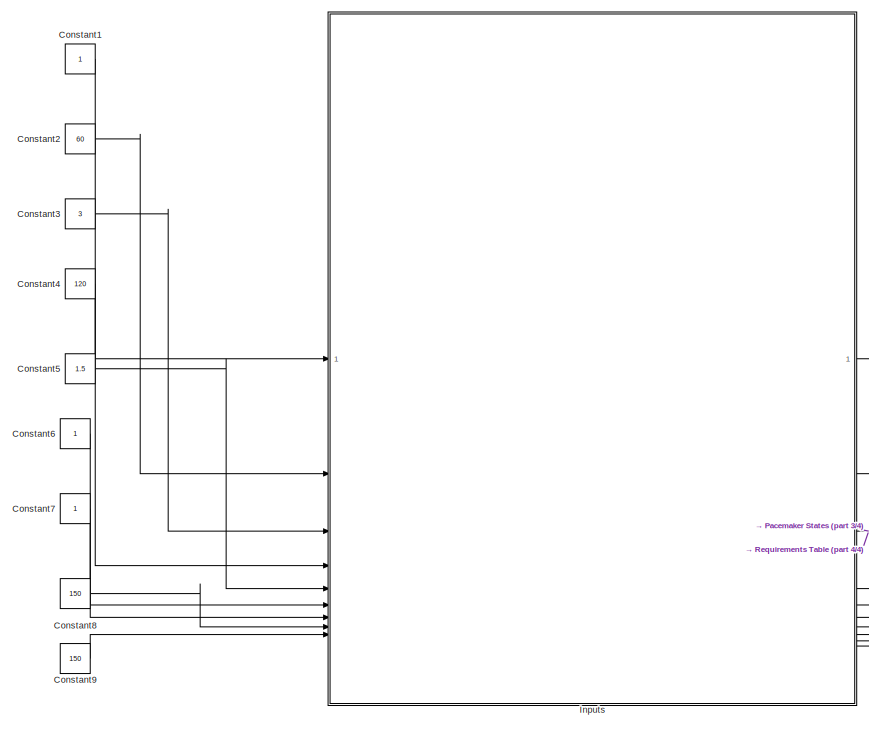
[diagram: root canvas - part 1/4, top left region]
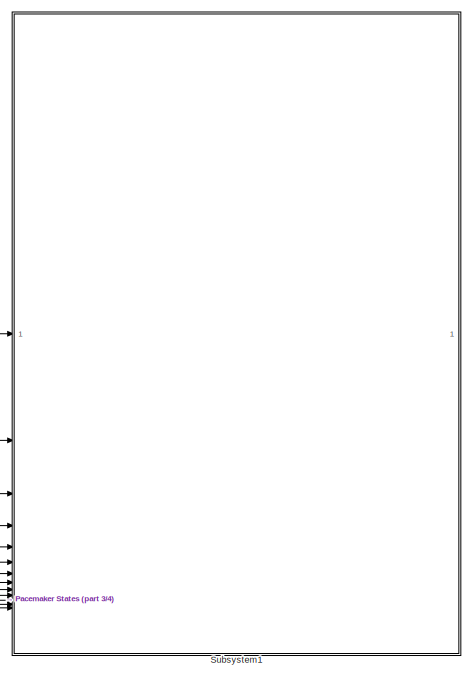
[diagram: root canvas - part 2/4, top right region]
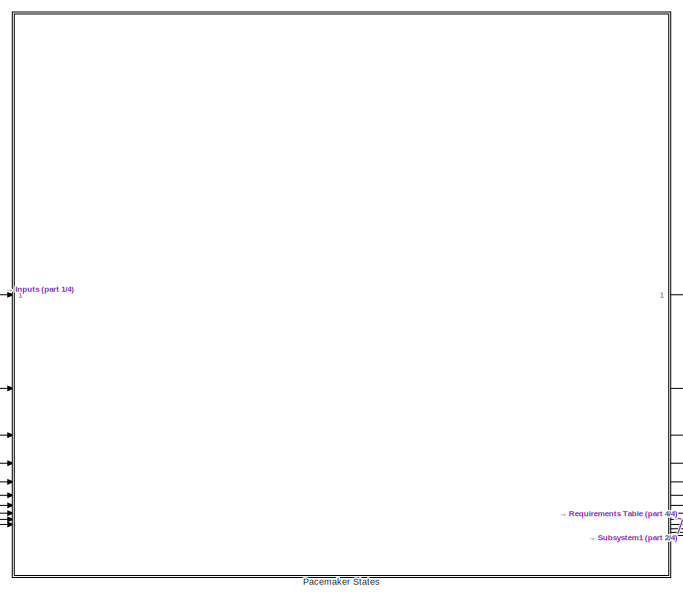
[diagram: root canvas - part 3/4, top center region]
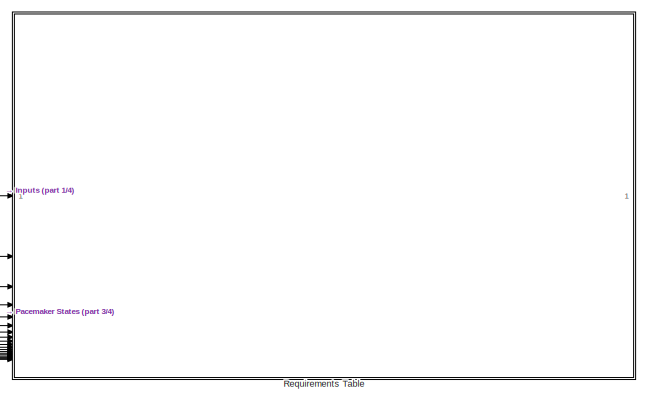
[diagram: root canvas - part 4/4, bottom right region]
MODEL slx_223e455a5ec5
KIND model
CONFIG AbsTol = auto
CONFIG EnableMultiTasking = on
CONFIG FixedStep = 1e-3
CONFIG MaxStep = auto
CONFIG MinStep = auto
CONFIG RelTol = 1e-3
CONFIG SampleTimeConstraint = Unconstrained
CONFIG SolverName = FixedStepAuto
CONFIG StartTime = 0.0
CONFIG StopTime = 10.0
BLOCK [Constant] Constant1
  OutDataTypeStr = int16
BLOCK [Constant] Constant2
  OutDataTypeStr = int16
  Value = 60
BLOCK [Constant] Constant3
  OutDataTypeStr = int8
  Value = 3
BLOCK [Constant] Constant4
  OutDataTypeStr = int16
  Value = 120
BLOCK [Constant] Constant5
  OutDataTypeStr = double
  Value = 1.5
BLOCK [Constant] Constant6
  OutDataTypeStr = double
BLOCK [Constant] Constant7
  OutDataTypeStr = int16
BLOCK [Constant] Constant8
  OutDataTypeStr = int16
  Value = 150
BLOCK [Constant] Constant9
  OutDataTypeStr = int16
  Value = 150
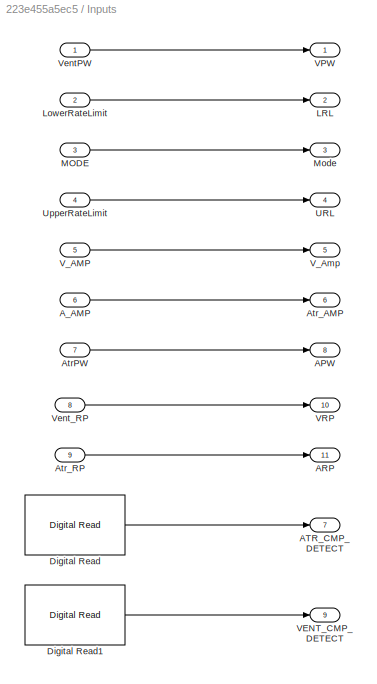
BLOCK [SubSystem] Inputs
BLOCK [Outport] Inputs/APW
  OutDataTypeStr = int16
  Port = 8
BLOCK [Outport] Inputs/ARP
  OutDataTypeStr = int16
  Port = 11
BLOCK [Outport] Inputs/ATR_CMP_DETECT
  OutDataTypeStr = boolean
  Port = 7
BLOCK [Inport] Inputs/A_AMP
  OutDataTypeStr = double
  Port = 6
BLOCK [Inport] Inputs/AtrPW
  OutDataTypeStr = int16
  Port = 7
BLOCK [Outport] Inputs/Atr_AMP
  OutDataTypeStr = double
  Port = 6
BLOCK [Inport] Inputs/Atr_RP
  OutDataTypeStr = int16
  Port = 9
BLOCK [Reference] Inputs/Digital Read  REF=frdmk64flib/Digital Read
  SourceBlock = frdmk64flib/Digital Read
  SourceType = freedomk64f.DigitalRead
BLOCK [Reference] Inputs/Digital Read1  REF=frdmk64flib/Digital Read
  SourceBlock = frdmk64flib/Digital Read
  SourceType = freedomk64f.DigitalRead
BLOCK [Outport] Inputs/LRL
  OutDataTypeStr = int16
  Port = 2
BLOCK [Inport] Inputs/LowerRateLimit
  OutDataTypeStr = int16
  Port = 2
BLOCK [Inport] Inputs/MODE
  OutDataTypeStr = int8
  Port = 3
BLOCK [Outport] Inputs/Mode
  OutDataTypeStr = int8
  Port = 3
BLOCK [Outport] Inputs/URL
  OutDataTypeStr = int16
  Port = 4
BLOCK [Inport] Inputs/UpperRateLimit
  OutDataTypeStr = int16
  Port = 4
BLOCK [Outport] Inputs/VENT_CMP_DETECT
  OutDataTypeStr = boolean
  Port = 9
BLOCK [Outport] Inputs/VPW
  OutDataTypeStr = int16
BLOCK [Outport] Inputs/VRP
  OutDataTypeStr = int16
  Port = 10
BLOCK [Inport] Inputs/V_AMP
  OutDataTypeStr = double
  Port = 5
BLOCK [Outport] Inputs/V_Amp
  OutDataTypeStr = double
  Port = 5
BLOCK [Inport] Inputs/VentPW
  OutDataTypeStr = int16
BLOCK [Inport] Inputs/Vent_RP
  OutDataTypeStr = int16
  Port = 8
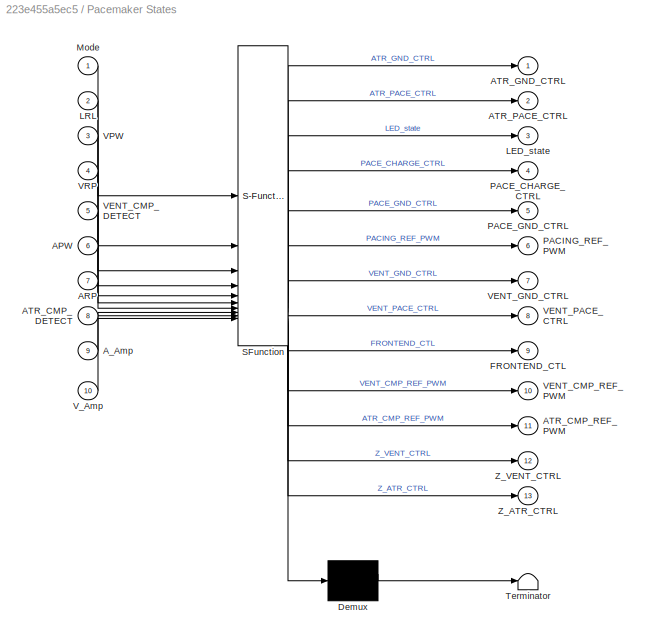
BLOCK [SubSystem] Pacemaker States
  ErrorFcn = Stateflow.Translate.translate
  PermitHierarchicalResolution = ExplicitOnly
  SFBlockType = Chart
  TreatAsAtomicUnit = on
BLOCK [Demux] Pacemaker States/ Demux 
  Outputs = 1
BLOCK [S-Function] Pacemaker States/ SFunction 
  EnableBusSupport = on
  FunctionName = sf_sfun
  PortCounts = [10 14]
  SFcnIsStateOwnerBlock = off
  SFunctionDeploymentMode = off
  Tag = Stateflow S-Function 6
BLOCK [Terminator] Pacemaker States/ Terminator 
BLOCK [Inport] Pacemaker States/APW
  Port = 6
BLOCK [Inport] Pacemaker States/ARP
  Port = 7
BLOCK [Inport] Pacemaker States/ATR_CMP_DETECT
  Port = 8
BLOCK [Outport] Pacemaker States/ATR_CMP_REF_PWM
  Port = 11
BLOCK [Outport] Pacemaker States/ATR_GND_CTRL
BLOCK [Outport] Pacemaker States/ATR_PACE_CTRL
  Port = 2
BLOCK [Inport] Pacemaker States/A_Amp
  Port = 9
BLOCK [Outport] Pacemaker States/FRONTEND_CTL
  Port = 9
BLOCK [Outport] Pacemaker States/LED_state
  Port = 3
BLOCK [Inport] Pacemaker States/LRL
  Port = 2
BLOCK [Inport] Pacemaker States/Mode
BLOCK [Outport] Pacemaker States/PACE_CHARGE_CTRL
  Port = 4
BLOCK [Outport] Pacemaker States/PACE_GND_CTRL
  Port = 5
BLOCK [Outport] Pacemaker States/PACING_REF_PWM
  Port = 6
BLOCK [Inport] Pacemaker States/VENT_CMP_DETECT
  Port = 5
BLOCK [Outport] Pacemaker States/VENT_CMP_REF_PWM
  Port = 10
BLOCK [Outport] Pacemaker States/VENT_GND_CTRL
  Port = 7
BLOCK [Outport] Pacemaker States/VENT_PACE_CTRL
  Port = 8
BLOCK [Inport] Pacemaker States/VPW
  Port = 3
BLOCK [Inport] Pacemaker States/VRP
  Port = 4
BLOCK [Inport] Pacemaker States/V_Amp
  Port = 10
BLOCK [Outport] Pacemaker States/Z_ATR_CTRL
  Port = 13
BLOCK [Outport] Pacemaker States/Z_VENT_CTRL
  Port = 12
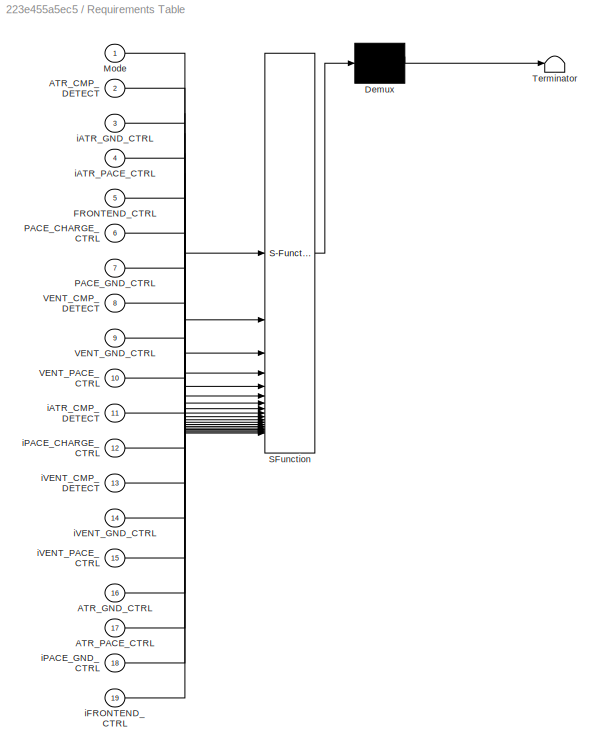
BLOCK [SubSystem] Requirements Table
  ErrorFcn = Stateflow.Translate.translate
  PermitHierarchicalResolution = ExplicitOnly
  SFBlockType = Requirements Table
  TreatAsAtomicUnit = on
BLOCK [Demux] Requirements Table/ Demux 
  Outputs = 1
BLOCK [S-Function] Requirements Table/ SFunction 
  EnableBusSupport = on
  FunctionName = sf_sfun
  PortCounts = [19 1]
  SFcnIsStateOwnerBlock = off
  SFunctionDeploymentMode = off
  Tag = Stateflow S-Function 3
BLOCK [Terminator] Requirements Table/ Terminator 
BLOCK [Inport] Requirements Table/ATR_CMP_DETECT
  Port = 2
BLOCK [Inport] Requirements Table/ATR_GND_CTRL
  Port = 16
BLOCK [Inport] Requirements Table/ATR_PACE_CTRL
  Port = 17
BLOCK [Inport] Requirements Table/FRONTEND_CTRL
  Port = 5
BLOCK [Inport] Requirements Table/Mode
BLOCK [Inport] Requirements Table/PACE_CHARGE_CTRL
  Port = 6
BLOCK [Inport] Requirements Table/PACE_GND_CTRL
  Port = 7
BLOCK [Inport] Requirements Table/VENT_CMP_DETECT
  Port = 8
BLOCK [Inport] Requirements Table/VENT_GND_CTRL
  Port = 9
BLOCK [Inport] Requirements Table/VENT_PACE_CTRL
  Port = 10
BLOCK [Inport] Requirements Table/iATR_CMP_DETECT
  Port = 11
BLOCK [Inport] Requirements Table/iATR_GND_CTRL
  Port = 3
BLOCK [Inport] Requirements Table/iATR_PACE_CTRL
  Port = 4
BLOCK [Inport] Requirements Table/iFRONTEND_CTRL
  Port = 19
BLOCK [Inport] Requirements Table/iPACE_CHARGE_CTRL
  Port = 12
BLOCK [Inport] Requirements Table/iPACE_GND_CTRL
  Port = 18
BLOCK [Inport] Requirements Table/iVENT_CMP_DETECT
  Port = 13
BLOCK [Inport] Requirements Table/iVENT_GND_CTRL
  Port = 14
BLOCK [Inport] Requirements Table/iVENT_PACE_CTRL
  Port = 15
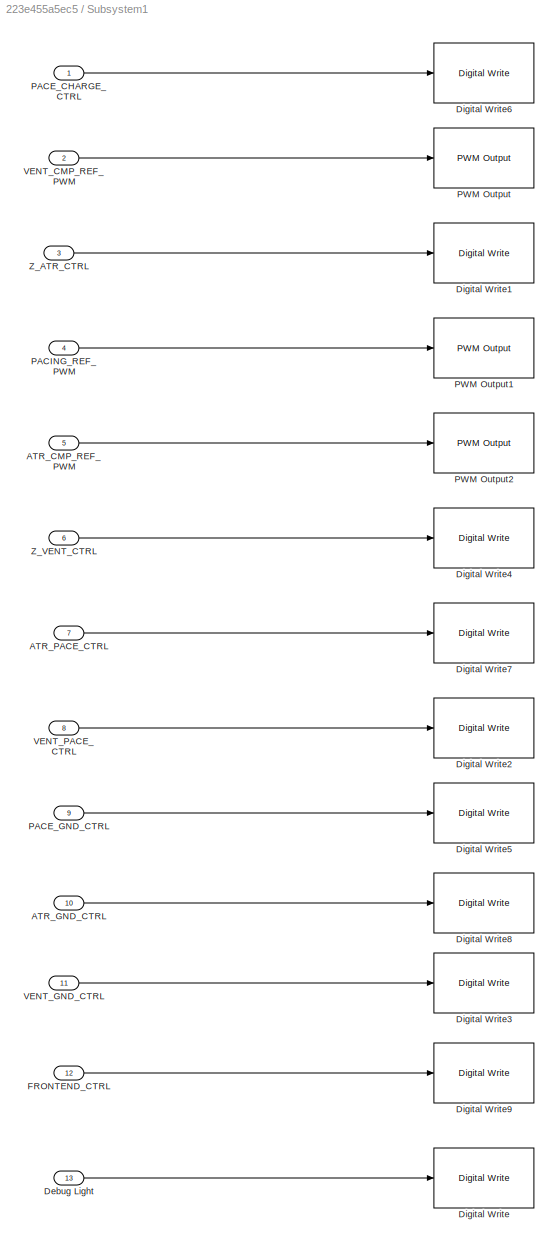
BLOCK [SubSystem] Subsystem1
BLOCK [Inport] Subsystem1/ATR_CMP_REF_PWM
  OutDataTypeStr = double
  Port = 5
BLOCK [Inport] Subsystem1/ATR_GND_CTRL
  OutDataTypeStr = boolean
  Port = 10
BLOCK [Inport] Subsystem1/ATR_PACE_CTRL
  OutDataTypeStr = boolean
  Port = 7
BLOCK [Inport] Subsystem1/Debug Light
  OutDataTypeStr = boolean
  Port = 13
BLOCK [Reference] Subsystem1/Digital Write  REF=frdmk64flib/Digital Write
  SourceBlock = frdmk64flib/Digital Write
  SourceType = freedomk64f.DigitalWrite
BLOCK [Reference] Subsystem1/Digital Write1  REF=frdmk64flib/Digital Write
  SourceBlock = frdmk64flib/Digital Write
  SourceType = freedomk64f.DigitalWrite
BLOCK [Reference] Subsystem1/Digital Write2  REF=frdmk64flib/Digital Write
  SourceBlock = frdmk64flib/Digital Write
  SourceType = freedomk64f.DigitalWrite
BLOCK [Reference] Subsystem1/Digital Write3  REF=frdmk64flib/Digital Write
  SourceBlock = frdmk64flib/Digital Write
  SourceType = freedomk64f.DigitalWrite
BLOCK [Reference] Subsystem1/Digital Write4  REF=frdmk64flib/Digital Write
  SourceBlock = frdmk64flib/Digital Write
  SourceType = freedomk64f.DigitalWrite
BLOCK [Reference] Subsystem1/Digital Write5  REF=frdmk64flib/Digital Write
  SourceBlock = frdmk64flib/Digital Write
  SourceType = freedomk64f.DigitalWrite
BLOCK [Reference] Subsystem1/Digital Write6  REF=frdmk64flib/Digital Write
  SourceBlock = frdmk64flib/Digital Write
  SourceType = freedomk64f.DigitalWrite
BLOCK [Reference] Subsystem1/Digital Write7  REF=frdmk64flib/Digital Write
  SourceBlock = frdmk64flib/Digital Write
  SourceType = freedomk64f.DigitalWrite
BLOCK [Reference] Subsystem1/Digital Write8  REF=frdmk64flib/Digital Write
  SourceBlock = frdmk64flib/Digital Write
  SourceType = freedomk64f.DigitalWrite
BLOCK [Reference] Subsystem1/Digital Write9  REF=frdmk64flib/Digital Write
  SourceBlock = frdmk64flib/Digital Write
  SourceType = freedomk64f.DigitalWrite
BLOCK [Inport] Subsystem1/FRONTEND_CTRL
  OutDataTypeStr = boolean
  Port = 12
BLOCK [Inport] Subsystem1/PACE_CHARGE_CTRL
  OutDataTypeStr = boolean
BLOCK [Inport] Subsystem1/PACE_GND_CTRL
  OutDataTypeStr = boolean
  Port = 9
BLOCK [Inport] Subsystem1/PACING_REF_PWM
  OutDataTypeStr = double
  Port = 4
BLOCK [Reference] Subsystem1/PWM Output  REF=frdmk64flib/PWM Output
  SourceBlock = frdmk64flib/PWM Output
  SourceType = freedomk64f.PWMOutput
BLOCK [Reference] Subsystem1/PWM Output1  REF=frdmk64flib/PWM Output
  SourceBlock = frdmk64flib/PWM Output
  SourceType = freedomk64f.PWMOutput
BLOCK [Reference] Subsystem1/PWM Output2  REF=frdmk64flib/PWM Output
  SourceBlock = frdmk64flib/PWM Output
  SourceType = freedomk64f.PWMOutput
BLOCK [Inport] Subsystem1/VENT_CMP_REF_PWM
  OutDataTypeStr = double
  Port = 2
BLOCK [Inport] Subsystem1/VENT_GND_CTRL
  OutDataTypeStr = boolean
  Port = 11
BLOCK [Inport] Subsystem1/VENT_PACE_CTRL
  OutDataTypeStr = boolean
  Port = 8
BLOCK [Inport] Subsystem1/Z_ATR_CTRL
  OutDataTypeStr = boolean
  Port = 3
BLOCK [Inport] Subsystem1/Z_VENT_CTRL
  OutDataTypeStr = boolean
  Port = 6
LINE Constant1:1 -> Inputs:1
LINE Constant2:1 -> Inputs:2
LINE Constant3:1 -> Inputs:3
LINE Constant4:1 -> Inputs:4
LINE Constant5:1 -> Inputs:5
LINE Constant6:1 -> Inputs:6
LINE Constant7:1 -> Inputs:7
LINE Constant8:1 -> Inputs:8
LINE Constant9:1 -> Inputs:9
LINE Inputs/A_AMP:1 -> Inputs/Atr_AMP:1
LINE Inputs/AtrPW:1 -> Inputs/APW:1
LINE Inputs/Atr_RP:1 -> Inputs/ARP:1
LINE Inputs/Digital Read1:1 -> Inputs/VENT_CMP_DETECT:1
LINE Inputs/Digital Read:1 -> Inputs/ATR_CMP_DETECT:1
LINE Inputs/LowerRateLimit:1 -> Inputs/LRL:1
LINE Inputs/MODE:1 -> Inputs/Mode:1
LINE Inputs/UpperRateLimit:1 -> Inputs/URL:1
LINE Inputs/V_AMP:1 -> Inputs/V_Amp:1
LINE Inputs/VentPW:1 -> Inputs/VPW:1
LINE Inputs/Vent_RP:1 -> Inputs/VRP:1
LINE Inputs:1 -> Pacemaker States:3
LINE Inputs:10 -> Pacemaker States:4
LINE Inputs:11 -> Pacemaker States:7
LINE Inputs:2 -> Pacemaker States:2
NET Inputs:3 -> Pacemaker States:1, Requirements Table:1
LINE Inputs:5 -> Pacemaker States:10
LINE Inputs:6 -> Pacemaker States:9
NET Inputs:7 -> Pacemaker States:8, Requirements Table:11, Requirements Table:2
LINE Inputs:8 -> Pacemaker States:6
NET Inputs:9 -> Pacemaker States:5, Requirements Table:13, Requirements Table:8
NET Pacemaker States:1 -> Requirements Table:16, Requirements Table:3, Subsystem1:10
LINE Pacemaker States:10 -> Subsystem1:2
LINE Pacemaker States:11 -> Subsystem1:5
LINE Pacemaker States:12 -> Subsystem1:6
LINE Pacemaker States:13 -> Subsystem1:3
NET Pacemaker States:2 -> Requirements Table:17, Requirements Table:4, Subsystem1:7
LINE Pacemaker States:3 -> Subsystem1:13
NET Pacemaker States:4 -> Requirements Table:12, Requirements Table:6, Subsystem1:1
NET Pacemaker States:5 -> Requirements Table:18, Requirements Table:7, Subsystem1:9
LINE Pacemaker States:6 -> Subsystem1:4
NET Pacemaker States:7 -> Requirements Table:14, Requirements Table:9, Subsystem1:11
NET Pacemaker States:8 -> Requirements Table:10, Requirements Table:15, Subsystem1:8
NET Pacemaker States:9 -> Requirements Table:19, Requirements Table:5, Subsystem1:12
LINE Subsystem1/ATR_CMP_REF_PWM:1 -> Subsystem1/PWM Output2:1
LINE Subsystem1/ATR_GND_CTRL:1 -> Subsystem1/Digital Write8:1
LINE Subsystem1/ATR_PACE_CTRL:1 -> Subsystem1/Digital Write7:1
LINE Subsystem1/Debug Light:1 -> Subsystem1/Digital Write:1
LINE Subsystem1/FRONTEND_CTRL:1 -> Subsystem1/Digital Write9:1
LINE Subsystem1/PACE_CHARGE_CTRL:1 -> Subsystem1/Digital Write6:1
LINE Subsystem1/PACE_GND_CTRL:1 -> Subsystem1/Digital Write5:1
LINE Subsystem1/PACING_REF_PWM:1 -> Subsystem1/PWM Output1:1
LINE Subsystem1/VENT_CMP_REF_PWM:1 -> Subsystem1/PWM Output:1
LINE Subsystem1/VENT_GND_CTRL:1 -> Subsystem1/Digital Write3:1
LINE Subsystem1/VENT_PACE_CTRL:1 -> Subsystem1/Digital Write2:1
LINE Subsystem1/Z_ATR_CTRL:1 -> Subsystem1/Digital Write1:1
LINE Subsystem1/Z_VENT_CTRL:1 -> Subsystem1/Digital Write4:1
note: NET lines group one-source signal fan-out (src -> all destinations, sorted); 1:1 wires keep LINE
CHART Requirements Table states=0 transitions=93
CHART Pacemaker States states=15 transitions=29
  STATE_LABEL 'AOO1\n'
  STATE_LABEL 'LED_on%State2(AOO)\n%Discharging C22\nPACE_CHARGE_CTRL = false;\nPACE_GND_CTRL = true;\nVENT_PACE_CTRL = false;\nATR_PACE_CTRL = true;\nVENT_GND_CTRL = true; %not sure\nATR_GND_CTRL = false;\n%LED STATE\nLED_state = true;'
  STATE_LABEL 'LED_off %State 1(AOO)\n%Charging C22\nPACING_REF_PWM = (A_Amp / 5)*100;\nPACE_CHARGE_CTRL = true;\nVENT_PACE_CTRL = false;\nATR_PACE_CTRL = false;\n%Discharging C21\nPACE_GND_CTRL = true;\nVENT_GND_CTRL = false;\nATR_GND_CTRL = true;\n%LED STATE\nLED_state = false;\n'
  STATE_LABEL '[Mode~=2]'
  STATE_LABEL 'after ((60000/LRL) - APW, msec)'
  STATE_LABEL 'after (APW,msec)'
  STATE_LABEL 'LED_on%State2(AOO)\n%Discharging C22\nPACE_CHARGE_CTRL = false;\nPACE_GND_CTRL = true;\nVENT_PACE_CTRL = false;\nATR_PACE_CTRL = true;\nVENT_GND_CTRL = true; %not sure\nATR_GND_CTRL = false;\n%LED STATE\nLED_state = true;'
  STATE_LABEL 'LED_off %State 1(AOO)\n%Charging C22\nPACING_REF_PWM = (A_Amp / 5)*100;\nPACE_CHARGE_CTRL = true;\nVENT_PACE_CTRL = false;\nATR_PACE_CTRL = false;\n%Discharging C21\nPACE_GND_CTRL = true;\nVENT_GND_CTRL = false;\nATR_GND_CTRL = true;\n%LED STATE\nLED_state = false;\n'
  STATE_LABEL 'Start_State %Default Start State\n\nentry:\nVENT_PACE_CTRL = false;\nATR_PACE_CTRL = false;\nVENT_GND_CTRL = false;\nATR_GND_CTRL = false;\nPACE_GND_CTRL = false;\nPACE_CHARGE_CTRL = false;\nFRONTEND_CTL = false;\nVENT_CMP_REF_PWM = 0;\nPACING_REF_PWM = 0;\nATR_CMP_REF_PWM = 0;\nZ_ATR_CTRL = false;\nZ_VENT_CTRL = false;\n'
  STATE_LABEL 'VOO1\n'
  STATE_LABEL 'LED_off %State 1(VOO)\nentry:\n%Charging C22\nPACING_REF_PWM = (V_Amp / 5)*100;\nPACE_CHARGE_CTRL = true;\nVENT_PACE_CTRL = false;\nATR_PACE_CTRL = false;\n%Discharging C21\nPACE_GND_CTRL = true;\nVENT_GND_CTRL = true;\nATR_GND_CTRL = false;\n%LED STATE\nLED_state = false;\n'
  STATE_LABEL 'LED_on%State2(VOO)\nentry:\n%Discharging C22\nPACE_CHARGE_CTRL = false;\nPACE_GND_CTRL = true;\nVENT_PACE_CTRL = true;\nATR_PACE_CTRL = false;\nVENT_GND_CTRL = false;\nATR_GND_CTRL = true; %not sure\n%LED STATE\nLED_state = true;'
  STATE_LABEL '[Mode ~= 1]'
  STATE_LABEL 'after ((60000/LRL) - VPW, msec)'
  STATE_LABEL 'after (VPW,msec)'
  STATE_LABEL 'LED_off %State 1(VOO)\nentry:\n%Charging C22\nPACING_REF_PWM = (V_Amp / 5)*100;\nPACE_CHARGE_CTRL = true;\nVENT_PACE_CTRL = false;\nATR_PACE_CTRL = false;\n%Discharging C21\nPACE_GND_CTRL = true;\nVENT_GND_CTRL = true;\nATR_GND_CTRL = false;\n%LED STATE\nLED_state = false;\n'
  STATE_LABEL 'LED_on%State2(VOO)\nentry:\n%Discharging C22\nPACE_CHARGE_CTRL = false;\nPACE_GND_CTRL = true;\nVENT_PACE_CTRL = true;\nATR_PACE_CTRL = false;\nVENT_GND_CTRL = false;\nATR_GND_CTRL = true; %not sure\n%LED STATE\nLED_state = true;'
  STATE_LABEL 'AAI1'
  STATE_LABEL 'SENSE_PULSE %Start sensing after ARP\nentry:\nLED_state = true;'
  STATE_LABEL 'SETUP_ATR_SENSE %State 1(VOO)\nentry:\nFRONTEND_CTL = true;\nATR_CMP_REF_PWM = 52;\nPACING_REF_PWM = (A_Amp / 5)*100;\nPACE_CHARGE_CTRL = true;\nVENT_PACE_CTRL = false;\nATR_PACE_CTRL = false;\n%Discharging C21\nPACE_GND_CTRL = true;\nVENT_GND_CTRL = false;\nATR_GND_CTRL = true;\n%LED STATE\nLED_state = false;\n'
  STATE_LABEL 'ATR_PACE_PT2 %Discharging C22\nentry:\nPACE_CHARGE_CTRL = false;\nATR_PACE_CTRL = true;\nATR_GND_CTRL = false;\n%LED STATE\nLED_state = true;'
  STATE_LABEL '[Mode~=4]'
  STATE_LABEL 'after(ARP, msec)'
  STATE_LABEL '[ATR_CMP_DETECT==true]'
  STATE_LABEL 'after(60000/LRL - ARP-APW,msec)'
  STATE_LABEL 'after(APW, msec)'
  STATE_LABEL 'SENSE_PULSE %Start sensing after ARP\nentry:\nLED_state = true;'
  STATE_LABEL 'SETUP_ATR_SENSE %State 1(VOO)\nentry:\nFRONTEND_CTL = true;\nATR_CMP_REF_PWM = 52;\nPACING_REF_PWM = (A_Amp / 5)*100;\nPACE_CHARGE_CTRL = true;\nVENT_PACE_CTRL = false;\nATR_PACE_CTRL = false;\n%Discharging C21\nPACE_GND_CTRL = true;\nVENT_GND_CTRL = false;\nATR_GND_CTRL = true;\n%LED STATE\nLED_state = false;\n'
  STATE_LABEL 'ATR_PACE_PT2 %Discharging C22\nentry:\nPACE_CHARGE_CTRL = false;\nATR_PACE_CTRL = true;\nATR_GND_CTRL = false;\n%LED STATE\nLED_state = true;'
  STATE_LABEL 'VVI1\n'
  STATE_LABEL 'SETUP_VENT_SENSE %State 1(VOO)\nentry:\nFRONTEND_CTL = true;\nVENT_CMP_REF_PWM = 53;\nPACING_REF_PWM = (V_Amp / 5)*100;\nPACE_CHARGE_CTRL = true;\nVENT_PACE_CTRL = false;\nATR_PACE_CTRL = false;\n%Discharging C21\nPACE_GND_CTRL = true;\nVENT_GND_CTRL = true;\nATR_GND_CTRL = false;\n%LED STATE\nLED_state = false;\n'
  STATE_LABEL 'SENSE_PULSE %Start sensing after VRP\nentry:\nLED_state=true;\n'
  STATE_LABEL 'VENT_PACE_PT2 %Discharging C22\nentry:\nPACE_CHARGE_CTRL = false;\nPACE_GND_CTRL = true;\nVENT_PACE_CTRL = true;\nATR_PACE_CTRL = false;\nVENT_GND_CTRL = false; %not sure\nATR_GND_CTRL = false;\n%LED STATE\nLED_state = true;\n'
  STATE_LABEL '[Mode~=3]'
  STATE_LABEL 'after(VRP, msec)'
  STATE_LABEL '[VENT_CMP_DETECT==true]'
  STATE_LABEL '[after(60000/LRL - VRP-VPW, msec)]'
  STATE_LABEL 'after(VPW,msec)'
  STATE_LABEL 'SETUP_VENT_SENSE %State 1(VOO)\nentry:\nFRONTEND_CTL = true;\nVENT_CMP_REF_PWM = 53;\nPACING_REF_PWM = (V_Amp / 5)*100;\nPACE_CHARGE_CTRL = true;\nVENT_PACE_CTRL = false;\nATR_PACE_CTRL = false;\n%Discharging C21\nPACE_GND_CTRL = true;\nVENT_GND_CTRL = true;\nATR_GND_CTRL = false;\n%LED STATE\nLED_state = false;\n'
  STATE_LABEL 'SENSE_PULSE %Start sensing after VRP\nentry:\nLED_state=true;\n'
CHART  states=0 transitions=0
CHART  states=0 transitions=0
